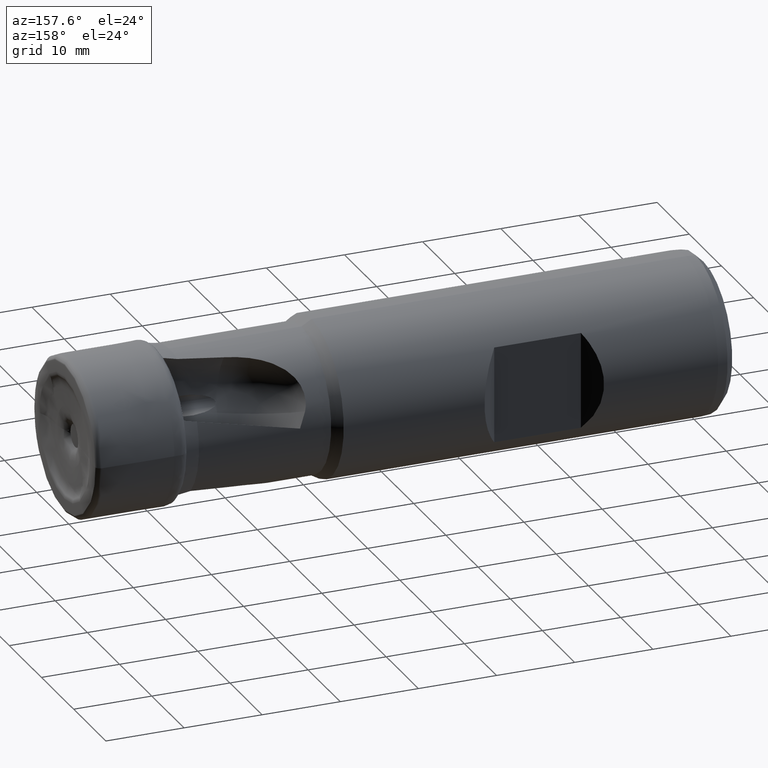
[diagram: clean part render]
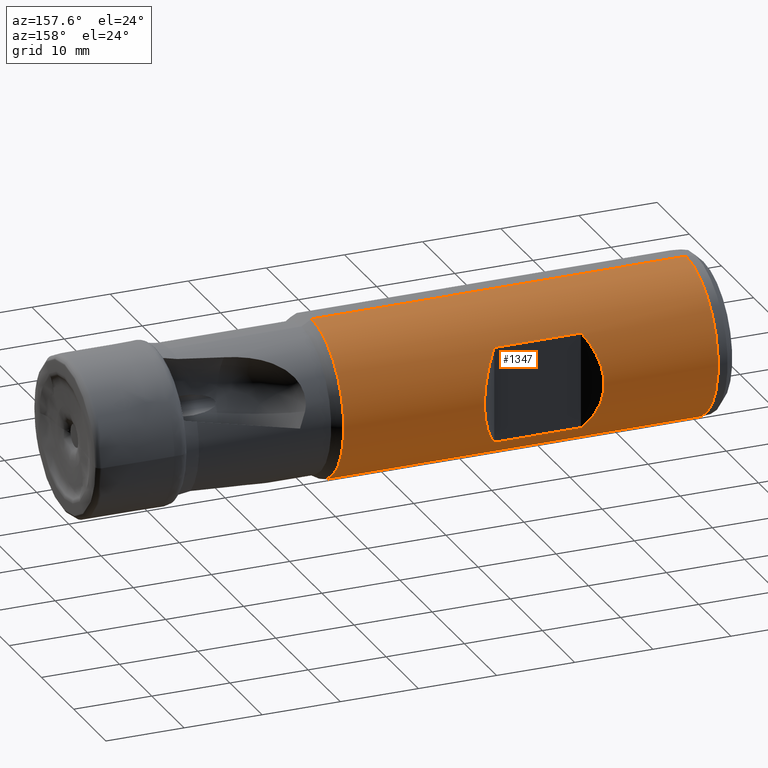
[diagram: same view with one face highlighted and labeled with its STEP entity id]
A machine part, auxiliary view. The second image highlights one B-rep face of the part: STEP entity #1347.
In plain terms, the highlighted cylindrical surface (partial cylindrical patch) has radius 10 mm, axis along (1, -0, -0).
Its self-contained STEP definition (entity closure, byte-faithful):
#29 = CIRCLE ( 'NONE', #1664, 9.999999999999992900 ) ;
#48 = LINE ( 'NONE', #1932, #63 ) ;
#63 = VECTOR ( 'NONE', #1924, 1000.000000000000000 ) ;
#146 = VERTEX_POINT ( 'NONE', #2213 ) ;
#161 = VERTEX_POINT ( 'NONE', #2207 ) ;
#271 = ORIENTED_EDGE ( 'NONE', *, *, #5041, .F. ) ;
#274 = VERTEX_POINT ( 'NONE', #2150 ) ;
#282 = EDGE_CURVE ( 'NONE', #456, #274, #29, .T. ) ;
#302 = VERTEX_POINT ( 'NONE', #1999 ) ;
#407 = VERTEX_POINT ( 'NONE', #2051 ) ;
#418 = VERTEX_POINT ( 'NONE', #2025 ) ;
#450 = ORIENTED_EDGE ( 'NONE', *, *, #282, .T. ) ;
#456 = VERTEX_POINT ( 'NONE', #1966 ) ;
#478 = VERTEX_POINT ( 'NONE', #1954 ) ;
#1210 = EDGE_CURVE ( 'NONE', #478, #456, #48, .T. ) ;
#1222 = VECTOR ( 'NONE', #1614, 1000.000000000000000 ) ;
#1347 = ADVANCED_FACE ( 'NONE', ( #5037, #5027 ), #5036, .T. ) ;
#1527 = EDGE_LOOP ( 'NONE', ( #4041, #4107, #4069, #4942 ) ) ;
#1556 = CARTESIAN_POINT ( 'NONE',  ( -78.97399999999997500, 0.0000000000000000000, 0.0000000000000000000 ) ) ;
#1557 = DIRECTION ( 'NONE',  ( 1.000000000000000000, -0.0000000000000000000, -0.0000000000000000000 ) ) ;
#1558 = DIRECTION ( 'NONE',  ( 0.0000000000000000000, 0.0000000000000000000, -1.000000000000000000 ) ) ;
#1605 = CARTESIAN_POINT ( 'NONE',  ( -51.17400000000000700, 7.900000000000002100, 6.131068422387711400 ) ) ;
#1610 = CARTESIAN_POINT ( 'NONE',  ( -48.26004651162793400, 10.81395348837207700, 2.376383109452601300 ) ) ;
#1613 = CARTESIAN_POINT ( 'NONE',  ( 0.0000000000000000000, 0.0000000000000000000, -9.999999999999992900 ) ) ;
#1614 = DIRECTION ( 'NONE',  ( 1.000000000000000000, -0.0000000000000000000, -0.0000000000000000000 ) ) ;
#1615 = CARTESIAN_POINT ( 'NONE',  ( -62.27400000000000100, 7.899999999999994100, -6.131068422387730100 ) ) ;
#1616 = CARTESIAN_POINT ( 'NONE',  ( -65.18795348837207400, 10.81395348837208400, -2.376383109452608400 ) ) ;
#1617 = CARTESIAN_POINT ( 'NONE',  ( -48.26004651162793400, 10.81395348837207800, -2.376383109452597300 ) ) ;
#1618 = CARTESIAN_POINT ( 'NONE',  ( -51.17400000000000700, 7.900000000000002100, -6.131068422387704300 ) ) ;
#1621 = CARTESIAN_POINT ( 'NONE',  ( -65.18795348837207400, 10.81395348837208700, 2.376383109452605300 ) ) ;
#1622 = CARTESIAN_POINT ( 'NONE',  ( -62.27400000000000100, 7.899999999999994100, 6.131068422387730100 ) ) ;
#1655 = EDGE_CURVE ( 'NONE', #407, #146, #5022, .T. ) ;
#1664 = AXIS2_PLACEMENT_3D ( 'NONE', #2120, #2119, #2118 ) ;
#1769 = AXIS2_PLACEMENT_3D ( 'NONE', #2745, #2746, #2744 ) ;
#1793 = AXIS2_PLACEMENT_3D ( 'NONE', #1556, #1557, #1558 ) ;
#1805 = LINE ( 'NONE', #3704, #4020 ) ;
#1924 = DIRECTION ( 'NONE',  ( 1.000000000000000000, -0.0000000000000000000, -0.0000000000000000000 ) ) ;
#1932 = CARTESIAN_POINT ( 'NONE',  ( 0.0000000000000000000, 1.224646799147352500E-015, 9.999999999999992900 ) ) ;
#1954 = CARTESIAN_POINT ( 'NONE',  ( -78.97399999999997500, 1.224646799147352500E-015, 9.999999999999992900 ) ) ;
#1966 = CARTESIAN_POINT ( 'NONE',  ( -31.05079491924311000, 0.0000000000000000000, 9.999999999999992900 ) ) ;
#1999 = CARTESIAN_POINT ( 'NONE',  ( -51.17400000000000700, 7.900000000000002100, -6.131068422387704300 ) ) ;
#2025 = CARTESIAN_POINT ( 'NONE',  ( -62.27400000000000100, 7.899999999999994100, -6.131068422387730100 ) ) ;
#2051 = CARTESIAN_POINT ( 'NONE',  ( -62.27400000000000100, 7.899999999999994100, 6.131068422387730100 ) ) ;
#2118 = DIRECTION ( 'NONE',  ( 0.0000000000000000000, 0.0000000000000000000, 1.000000000000000000 ) ) ;
#2119 = DIRECTION ( 'NONE',  ( -1.000000000000000000, 0.0000000000000000000, 0.0000000000000000000 ) ) ;
#2120 = CARTESIAN_POINT ( 'NONE',  ( -31.05079491924311000, 0.0000000000000000000, 0.0000000000000000000 ) ) ;
#2150 = CARTESIAN_POINT ( 'NONE',  ( -31.05079491924311000, 1.224646799147352500E-015, -9.999999999999992900 ) ) ;
#2207 = CARTESIAN_POINT ( 'NONE',  ( -78.97399999999997500, 0.0000000000000000000, -9.999999999999992900 ) ) ;
#2213 = CARTESIAN_POINT ( 'NONE',  ( -51.17400000000000700, 7.900000000000002100, 6.131068422387711400 ) ) ;
#2744 = DIRECTION ( 'NONE',  ( 0.0000000000000000000, 0.0000000000000000000, -1.000000000000000000 ) ) ;
#2745 = CARTESIAN_POINT ( 'NONE',  ( 0.0000000000000000000, 0.0000000000000000000, 0.0000000000000000000 ) ) ;
#2746 = DIRECTION ( 'NONE',  ( 1.000000000000000000, -0.0000000000000000000, -0.0000000000000000000 ) ) ;
#2767 = CARTESIAN_POINT ( 'NONE',  ( 1.234623014433943200E-015, 7.899999999999994100, 6.131068422387730100 ) ) ;
#2768 = DIRECTION ( 'NONE',  ( 1.000000000000000000, -0.0000000000000000000, -0.0000000000000000000 ) ) ;
#3292 =( BOUNDED_CURVE ( )  B_SPLINE_CURVE ( 3, ( #1605, #1610, #1617, #1618 ),
 .UNSPECIFIED., .F., .F. ) 
 B_SPLINE_CURVE_WITH_KNOTS ( ( 4, 4 ),
 ( 5.623197977792090200, 6.943172636567082300 ),
 .UNSPECIFIED. ) 
 CURVE ( )  GEOMETRIC_REPRESENTATION_ITEM ( )  RATIONAL_B_SPLINE_CURVE ( ( 1.000000000000000000, 0.8600000000000008700, 0.8600000000000008700, 1.000000000000000000 ) ) 
 REPRESENTATION_ITEM ( '' )  );
#3399 =( BOUNDED_CURVE ( )  B_SPLINE_CURVE ( 3, ( #1615, #1616, #1621, #1622 ),
 .UNSPECIFIED., .F., .F. ) 
 B_SPLINE_CURVE_WITH_KNOTS ( ( 4, 4 ),
 ( 2.481605324202294800, 3.801579982977291400 ),
 .UNSPECIFIED. ) 
 CURVE ( )  GEOMETRIC_REPRESENTATION_ITEM ( )  RATIONAL_B_SPLINE_CURVE ( ( 1.000000000000000000, 0.8599999999999999900, 0.8599999999999999900, 1.000000000000000000 ) ) 
 REPRESENTATION_ITEM ( '' )  );
#3704 = CARTESIAN_POINT ( 'NONE',  ( 1.234623014433943200E-015, 7.899999999999994100, -6.131068422387730100 ) ) ;
#3705 = DIRECTION ( 'NONE',  ( -1.000000000000000000, 0.0000000000000000000, 0.0000000000000000000 ) ) ;
#3807 = EDGE_CURVE ( 'NONE', #302, #418, #1805, .T. ) ;
#4001 = LINE ( 'NONE', #1613, #1222 ) ;
#4020 = VECTOR ( 'NONE', #3705, 1000.000000000000000 ) ;
#4026 = CIRCLE ( 'NONE', #1793, 9.999999999999992900 ) ;
#4041 = ORIENTED_EDGE ( 'NONE', *, *, #3807, .F. ) ;
#4069 = ORIENTED_EDGE ( 'NONE', *, *, #1655, .F. ) ;
#4084 = EDGE_LOOP ( 'NONE', ( #4948, #4953, #450, #271 ) ) ;
#4107 = ORIENTED_EDGE ( 'NONE', *, *, #5042, .F. ) ;
#4608 = EDGE_CURVE ( 'NONE', #161, #478, #4026, .T. ) ;
#4942 = ORIENTED_EDGE ( 'NONE', *, *, #5043, .F. ) ;
#4948 = ORIENTED_EDGE ( 'NONE', *, *, #4608, .T. ) ;
#4953 = ORIENTED_EDGE ( 'NONE', *, *, #1210, .T. ) ;
#5004 = VECTOR ( 'NONE', #2768, 1000.000000000000000 ) ;
#5022 = LINE ( 'NONE', #2767, #5004 ) ;
#5027 = FACE_OUTER_BOUND ( 'NONE', #4084, .T. ) ;
#5036 = CYLINDRICAL_SURFACE ( 'NONE', #1769, 9.999999999999992900 ) ;
#5037 = FACE_BOUND ( 'NONE', #1527, .T. ) ;
#5041 = EDGE_CURVE ( 'NONE', #161, #274, #4001, .T. ) ;
#5042 = EDGE_CURVE ( 'NONE', #146, #302, #3292, .T. ) ;
#5043 = EDGE_CURVE ( 'NONE', #418, #407, #3399, .T. ) ;